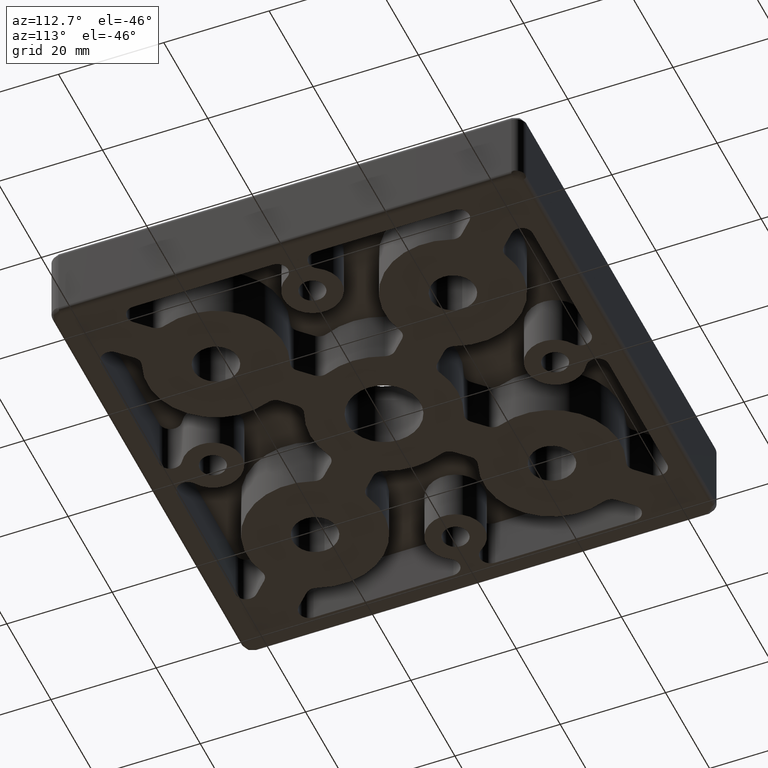
[diagram: clean part render]
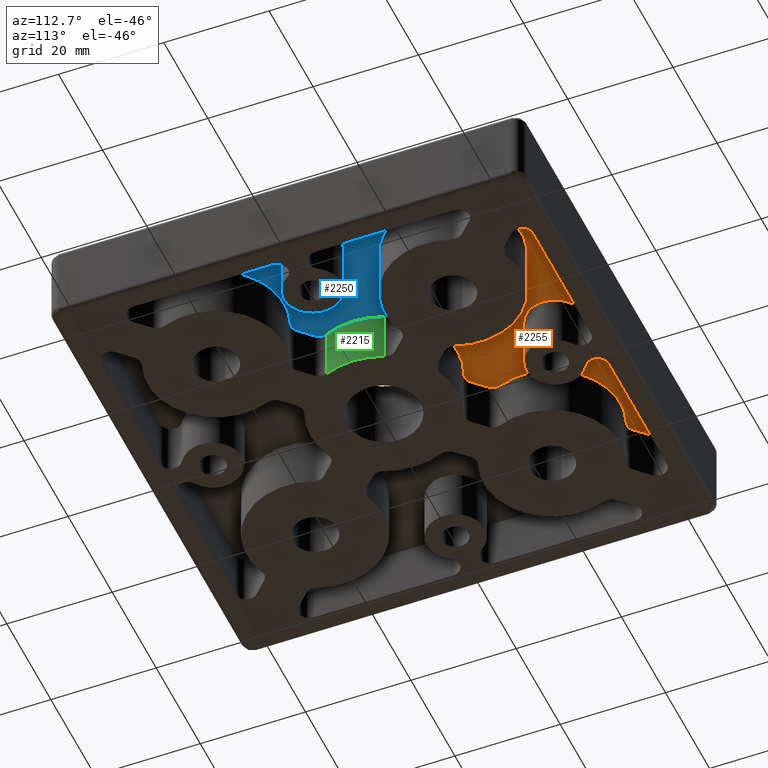
[diagram: same view with three faces highlighted in distinct colors, each labeled with its STEP entity id]
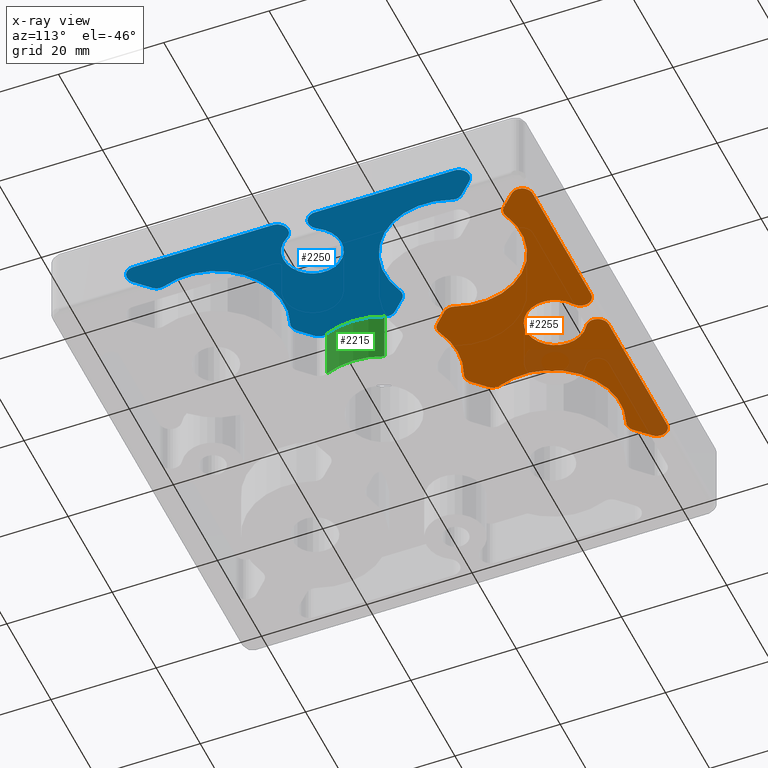
[diagram: x-ray of the same camera — body ghosted, the three highlighted faces saturated]
A machine part, auxiliary view with three faces highlighted in distinct colors.
The next image is the same camera in x-ray (body ghosted, the three faces saturated) — at least one of them is partly hidden behind the body in this view.
Their STEP definitions:

[orange] entity #2255 — the highlighted planar face has unit normal (0, 0, 1).
#95=PLANE('',#2489);
#183=FACE_OUTER_BOUND('',#315,.T.);
#315=EDGE_LOOP('',(#1755,#1756,#1757,#1758,#1759,#1760,#1761,#1762,#1763,
#1764,#1765,#1766,#1767,#1768,#1769,#1770,#1771,#1772,#1773,#1774));
#450=LINE('',#3484,#602);
#460=LINE('',#3522,#612);
#471=LINE('',#3567,#623);
#490=LINE('',#3642,#642);
#500=LINE('',#3678,#652);
#534=LINE('',#3802,#686);
#602=VECTOR('',#2733,26.514718625761);
#612=VECTOR('',#2771,3.58679669428856);
#623=VECTOR('',#2822,3.23968109436408);
#642=VECTOR('',#2901,3.23968109436305);
#652=VECTOR('',#2939,3.58679669428761);
#686=VECTOR('',#3073,26.5147186257614);
#744=CIRCLE('',#2355,2.);
#752=CIRCLE('',#2369,2.);
#754=CIRCLE('',#2373,2.);
#756=CIRCLE('',#2376,13.);
#764=CIRCLE('',#2389,2.);
#774=CIRCLE('',#2407,2.);
#776=CIRCLE('',#2410,14.);
#782=CIRCLE('',#2419,2.);
#786=CIRCLE('',#2427,2.);
#788=CIRCLE('',#2430,13.);
#790=CIRCLE('',#2433,2.);
#817=CIRCLE('',#2481,5.5);
#819=CIRCLE('',#2484,2.07142857142857);
#821=CIRCLE('',#2488,2.07142857142857);
#933=VERTEX_POINT('',#3471);
#934=VERTEX_POINT('',#3472);
#938=VERTEX_POINT('',#3482);
#949=VERTEX_POINT('',#3513);
#950=VERTEX_POINT('',#3514);
#953=VERTEX_POINT('',#3525);
#954=VERTEX_POINT('',#3526);
#963=VERTEX_POINT('',#3558);
#964=VERTEX_POINT('',#3559);
#981=VERTEX_POINT('',#3609);
#982=VERTEX_POINT('',#3610);
#989=VERTEX_POINT('',#3633);
#990=VERTEX_POINT('',#3634);
#997=VERTEX_POINT('',#3657);
#998=VERTEX_POINT('',#3658);
#1001=VERTEX_POINT('',#3669);
#1002=VERTEX_POINT('',#3670);
#1041=VERTEX_POINT('',#3790);
#1042=VERTEX_POINT('',#3792);
#1044=VERTEX_POINT('',#3798);
#1170=EDGE_CURVE('',#933,#934,#744,.T.);
#1176=EDGE_CURVE('',#938,#934,#450,.T.);
#1190=EDGE_CURVE('',#949,#950,#752,.T.);
#1194=EDGE_CURVE('',#933,#950,#460,.T.);
#1196=EDGE_CURVE('',#953,#954,#754,.T.);
#1200=EDGE_CURVE('',#949,#954,#756,.T.);
#1213=EDGE_CURVE('',#963,#964,#764,.T.);
#1217=EDGE_CURVE('',#953,#964,#471,.T.);
#1238=EDGE_CURVE('',#981,#982,#774,.T.);
#1242=EDGE_CURVE('',#963,#982,#776,.T.);
#1250=EDGE_CURVE('',#989,#990,#782,.T.);
#1254=EDGE_CURVE('',#981,#990,#490,.T.);
#1262=EDGE_CURVE('',#997,#998,#786,.T.);
#1266=EDGE_CURVE('',#989,#998,#788,.T.);
#1268=EDGE_CURVE('',#1001,#1002,#790,.T.);
#1272=EDGE_CURVE('',#997,#1002,#500,.T.);
#1329=EDGE_CURVE('',#1041,#1042,#817,.T.);
#1333=EDGE_CURVE('',#1044,#1041,#819,.T.);
#1334=EDGE_CURVE('',#1001,#1044,#534,.T.);
#1337=EDGE_CURVE('',#1042,#938,#821,.T.);
#1755=ORIENTED_EDGE('',*,*,#1170,.T.);
#1756=ORIENTED_EDGE('',*,*,#1176,.F.);
#1757=ORIENTED_EDGE('',*,*,#1337,.F.);
#1758=ORIENTED_EDGE('',*,*,#1329,.F.);
#1759=ORIENTED_EDGE('',*,*,#1333,.F.);
#1760=ORIENTED_EDGE('',*,*,#1334,.F.);
#1761=ORIENTED_EDGE('',*,*,#1268,.T.);
#1762=ORIENTED_EDGE('',*,*,#1272,.F.);
#1763=ORIENTED_EDGE('',*,*,#1262,.T.);
#1764=ORIENTED_EDGE('',*,*,#1266,.F.);
#1765=ORIENTED_EDGE('',*,*,#1250,.T.);
#1766=ORIENTED_EDGE('',*,*,#1254,.F.);
#1767=ORIENTED_EDGE('',*,*,#1238,.T.);
#1768=ORIENTED_EDGE('',*,*,#1242,.F.);
#1769=ORIENTED_EDGE('',*,*,#1213,.T.);
#1770=ORIENTED_EDGE('',*,*,#1217,.F.);
#1771=ORIENTED_EDGE('',*,*,#1196,.T.);
#1772=ORIENTED_EDGE('',*,*,#1200,.F.);
#1773=ORIENTED_EDGE('',*,*,#1190,.T.);
#1774=ORIENTED_EDGE('',*,*,#1194,.F.);
#2255=ADVANCED_FACE('',(#183),#95,.F.);
#2355=AXIS2_PLACEMENT_3D('',#3473,#2723,#2724);
#2369=AXIS2_PLACEMENT_3D('',#3515,#2763,#2764);
#2373=AXIS2_PLACEMENT_3D('',#3527,#2775,#2776);
#2376=AXIS2_PLACEMENT_3D('',#3534,#2783,#2784);
#2389=AXIS2_PLACEMENT_3D('',#3560,#2814,#2815);
#2407=AXIS2_PLACEMENT_3D('',#3611,#2865,#2866);
#2410=AXIS2_PLACEMENT_3D('',#3618,#2873,#2874);
#2419=AXIS2_PLACEMENT_3D('',#3635,#2893,#2894);
#2427=AXIS2_PLACEMENT_3D('',#3659,#2917,#2918);
#2430=AXIS2_PLACEMENT_3D('',#3666,#2925,#2926);
#2433=AXIS2_PLACEMENT_3D('',#3671,#2931,#2932);
#2481=AXIS2_PLACEMENT_3D('',#3793,#3061,#3062);
#2484=AXIS2_PLACEMENT_3D('',#3800,#3069,#3070);
#2488=AXIS2_PLACEMENT_3D('',#3806,#3079,#3080);
#2489=AXIS2_PLACEMENT_3D('',#3807,#3081,#3082);
#2723=DIRECTION('center_axis',(0.,0.,-1.));
#2724=DIRECTION('ref_axis',(-0.92387953251129,0.382683432365081,0.));
#2733=DIRECTION('',(-1.,-5.66744912441184E-16,0.));
#2763=DIRECTION('center_axis',(0.,0.,-1.));
#2764=DIRECTION('ref_axis',(-0.204309643689221,-0.978906312930703,0.));
#2771=DIRECTION('',(0.707106781186548,-0.707106781186547,0.));
#2775=DIRECTION('center_axis',(0.,0.,-1.));
#2776=DIRECTION('ref_axis',(-0.978906312930703,-0.204309643689221,0.));
#2783=DIRECTION('center_axis',(0.,0.,-1.));
#2784=DIRECTION('ref_axis',(0.455230824424841,-0.890373459001041,0.));
#2814=DIRECTION('center_axis',(0.,0.,-1.));
#2815=DIRECTION('ref_axis',(-0.191017262457544,-0.981586677498847,0.));
#2822=DIRECTION('',(0.707106781186548,-0.707106781186548,0.));
#2865=DIRECTION('center_axis',(0.,0.,-1.));
#2866=DIRECTION('ref_axis',(0.191017262457549,-0.981586677498846,0.));
#2873=DIRECTION('center_axis',(0.,0.,-1.));
#2874=DIRECTION('ref_axis',(0.47560041826768,-0.879661436089822,0.));
#2893=DIRECTION('center_axis',(0.,0.,-1.));
#2894=DIRECTION('ref_axis',(0.978906312930719,-0.204309643689144,0.));
#2901=DIRECTION('',(0.707106781186548,0.707106781186547,0.));
#2917=DIRECTION('center_axis',(0.,0.,-1.));
#2918=DIRECTION('ref_axis',(0.204309643689146,-0.978906312930719,0.));
#2925=DIRECTION('center_axis',(0.,0.,-1.));
#2926=DIRECTION('ref_axis',(0.89037345900097,0.45523082442498,0.));
#2931=DIRECTION('center_axis',(0.,0.,-1.));
#2932=DIRECTION('ref_axis',(0.923879532511288,0.382683432365086,0.));
#2939=DIRECTION('',(0.707106781186548,0.707106781186547,0.));
#3061=DIRECTION('center_axis',(0.,0.,-1.));
#3062=DIRECTION('ref_axis',(-0.528301886792507,-0.849056603773551,0.));
#3069=DIRECTION('center_axis',(0.,0.,1.));
#3070=DIRECTION('ref_axis',(-0.528301886792223,-0.849056603773728,0.));
#3073=DIRECTION('',(-1.,2.83372456220589E-16,0.));
#3079=DIRECTION('center_axis',(0.,0.,1.));
#3080=DIRECTION('ref_axis',(-1.96432908253504E-13,1.,0.));
#3081=DIRECTION('center_axis',(0.,0.,1.));
#3082=DIRECTION('ref_axis',(1.,0.,0.));
#3471=CARTESIAN_POINT('',(-31.9289321881345,37.5857864376269,-5.));
#3472=CARTESIAN_POINT('',(-30.5147186257614,41.,-5.));
#3473=CARTESIAN_POINT('Origin',(-30.5147186257614,39.,-5.));
#3482=CARTESIAN_POINT('',(-4.00000000000041,41.,-5.));
#3484=CARTESIAN_POINT('',(-35.3431457505076,41.,-5.));
#3513=CARTESIAN_POINT('',(-27.2480076457602,34.6019181701003,-5.));
#3514=CARTESIAN_POINT('',(-29.3926839228656,35.049538172358,-5.));
#3515=CARTESIAN_POINT('Origin',(-27.9784703604925,36.4637517347311,-5.));
#3522=CARTESIAN_POINT('',(-28.4180007175248,34.0748549670172,-5.));
#3525=CARTESIAN_POINT('',(-9.95046182764202,15.6073160771344,-5.));
#3526=CARTESIAN_POINT('',(-10.3980818298997,17.7519923542398,-5.));
#3527=CARTESIAN_POINT('Origin',(-8.53624826526893,17.0215296395075,-5.));
#3534=CARTESIAN_POINT('Origin',(-22.5,22.5,-5.));
#3558=CARTESIAN_POINT('',(-5.46476682024194,12.8893880226971,-5.));
#3559=CARTESIAN_POINT('',(-7.65966135693533,13.3165156064277,-5.));
#3560=CARTESIAN_POINT('Origin',(-6.24544779456223,14.7307291688008,-5.));
#3567=CARTESIAN_POINT('',(-6.65840585576003,12.3152601052524,-5.));
#3609=CARTESIAN_POINT('',(7.65966135693538,13.3165156064278,-5.));
#3610=CARTESIAN_POINT('',(5.46476682024202,12.8893880226972,-5.));
#3611=CARTESIAN_POINT('Origin',(6.24544779456229,14.7307291688009,-5.));
#3618=CARTESIAN_POINT('Origin',(1.02140518265514E-13,-2.84416934448473E-11,
-5.));
#3633=CARTESIAN_POINT('',(10.3980818298989,17.7519923542394,-5.));
#3634=CARTESIAN_POINT('',(9.95046182764135,15.6073160771337,-5.));
#3635=CARTESIAN_POINT('Origin',(8.53624826526825,17.0215296395068,-5.));
#3642=CARTESIAN_POINT('',(10.9251450329828,16.5819992824752,-5.));
#3657=CARTESIAN_POINT('',(29.3926839228663,35.0495381723587,-5.));
#3658=CARTESIAN_POINT('',(27.2480076457605,34.6019181701011,-5.));
#3659=CARTESIAN_POINT('Origin',(27.9784703604932,36.4637517347318,-5.));
#3666=CARTESIAN_POINT('Origin',(22.4999999999985,22.5000000000015,-5.));
#3669=CARTESIAN_POINT('',(30.5147186257614,41.,-5.));
#3670=CARTESIAN_POINT('',(31.9289321881345,37.5857864376269,-5.));
#3671=CARTESIAN_POINT('Origin',(30.5147186257614,39.,-5.));
#3678=CARTESIAN_POINT('',(35.3431457505076,41.,-5.));
#3790=CARTESIAN_POINT('',(2.90566037735897,37.1698113207544,-5.));
#3792=CARTESIAN_POINT('',(-2.90566037735849,37.1698113207547,-5.));
#3793=CARTESIAN_POINT('Origin',(6.10622663543836E-15,32.4999999999996,-5.));
#3798=CARTESIAN_POINT('',(4.,41.,-5.));
#3800=CARTESIAN_POINT('Origin',(4.,38.9285714285714,-5.));
#3802=CARTESIAN_POINT('',(4.,41.,-5.));
#3806=CARTESIAN_POINT('Origin',(-4.,38.9285714285714,-5.));
#3807=CARTESIAN_POINT('Origin',(1.62922618194111E-13,33.0281692798006,-5.));

[blue] entity #2250 — the highlighted planar face has unit normal (0, 0, 1).
#93=PLANE('',#2478);
#178=FACE_OUTER_BOUND('',#310,.T.);
#310=EDGE_LOOP('',(#1719,#1720,#1721,#1722,#1723,#1724,#1725,#1726,#1727,
#1728,#1729,#1730,#1731,#1732,#1733,#1734,#1735,#1736,#1737,#1738));
#483=LINE('',#3607,#635);
#495=LINE('',#3655,#647);
#505=LINE('',#3691,#657);
#510=LINE('',#3706,#662);
#524=LINE('',#3762,#676);
#526=LINE('',#3766,#678);
#635=VECTOR('',#2862,3.23968109408057);
#647=VECTOR('',#2914,3.58679669428888);
#657=VECTOR('',#2952,26.5147186257615);
#662=VECTOR('',#2965,3.58679669428855);
#676=VECTOR('',#3027,3.23968109407994);
#678=VECTOR('',#3031,26.5147186257614);
#766=CIRCLE('',#2393,2.);
#769=CIRCLE('',#2397,14.);
#772=CIRCLE('',#2403,2.);
#778=CIRCLE('',#2413,2.);
#781=CIRCLE('',#2417,13.);
#784=CIRCLE('',#2423,2.);
#792=CIRCLE('',#2437,2.);
#794=CIRCLE('',#2441,2.);
#796=CIRCLE('',#2445,2.);
#799=CIRCLE('',#2449,13.);
#808=CIRCLE('',#2465,2.);
#811=CIRCLE('',#2471,2.07142857142858);
#813=CIRCLE('',#2474,5.5);
#815=CIRCLE('',#2477,2.07142857142858);
#967=VERTEX_POINT('',#3570);
#968=VERTEX_POINT('',#3571);
#972=VERTEX_POINT('',#3581);
#977=VERTEX_POINT('',#3597);
#980=VERTEX_POINT('',#3605);
#985=VERTEX_POINT('',#3621);
#988=VERTEX_POINT('',#3629);
#993=VERTEX_POINT('',#3645);
#996=VERTEX_POINT('',#3653);
#1005=VERTEX_POINT('',#3681);
#1008=VERTEX_POINT('',#3689);
#1009=VERTEX_POINT('',#3693);
#1010=VERTEX_POINT('',#3694);
#1014=VERTEX_POINT('',#3704);
#1015=VERTEX_POINT('',#3708);
#1018=VERTEX_POINT('',#3716);
#1031=VERTEX_POINT('',#3756);
#1033=VERTEX_POINT('',#3765);
#1036=VERTEX_POINT('',#3773);
#1038=VERTEX_POINT('',#3779);
#1219=EDGE_CURVE('',#967,#968,#766,.T.);
#1225=EDGE_CURVE('',#972,#968,#769,.T.);
#1232=EDGE_CURVE('',#972,#977,#772,.T.);
#1237=EDGE_CURVE('',#980,#977,#483,.T.);
#1244=EDGE_CURVE('',#980,#985,#778,.T.);
#1249=EDGE_CURVE('',#988,#985,#781,.T.);
#1256=EDGE_CURVE('',#988,#993,#784,.T.);
#1261=EDGE_CURVE('',#996,#993,#495,.T.);
#1274=EDGE_CURVE('',#996,#1005,#792,.T.);
#1279=EDGE_CURVE('',#1008,#1005,#505,.T.);
#1280=EDGE_CURVE('',#1009,#1010,#794,.T.);
#1286=EDGE_CURVE('',#1014,#1010,#510,.T.);
#1287=EDGE_CURVE('',#1014,#1015,#796,.T.);
#1292=EDGE_CURVE('',#1018,#1015,#799,.T.);
#1311=EDGE_CURVE('',#1018,#1031,#808,.T.);
#1314=EDGE_CURVE('',#967,#1031,#524,.T.);
#1316=EDGE_CURVE('',#1009,#1033,#526,.T.);
#1321=EDGE_CURVE('',#1036,#1008,#811,.T.);
#1324=EDGE_CURVE('',#1038,#1036,#813,.T.);
#1326=EDGE_CURVE('',#1033,#1038,#815,.T.);
#1719=ORIENTED_EDGE('',*,*,#1219,.T.);
#1720=ORIENTED_EDGE('',*,*,#1225,.F.);
#1721=ORIENTED_EDGE('',*,*,#1232,.T.);
#1722=ORIENTED_EDGE('',*,*,#1237,.F.);
#1723=ORIENTED_EDGE('',*,*,#1244,.T.);
#1724=ORIENTED_EDGE('',*,*,#1249,.F.);
#1725=ORIENTED_EDGE('',*,*,#1256,.T.);
#1726=ORIENTED_EDGE('',*,*,#1261,.F.);
#1727=ORIENTED_EDGE('',*,*,#1274,.T.);
#1728=ORIENTED_EDGE('',*,*,#1279,.F.);
#1729=ORIENTED_EDGE('',*,*,#1321,.F.);
#1730=ORIENTED_EDGE('',*,*,#1324,.F.);
#1731=ORIENTED_EDGE('',*,*,#1326,.F.);
#1732=ORIENTED_EDGE('',*,*,#1316,.F.);
#1733=ORIENTED_EDGE('',*,*,#1280,.T.);
#1734=ORIENTED_EDGE('',*,*,#1286,.F.);
#1735=ORIENTED_EDGE('',*,*,#1287,.T.);
#1736=ORIENTED_EDGE('',*,*,#1292,.F.);
#1737=ORIENTED_EDGE('',*,*,#1311,.T.);
#1738=ORIENTED_EDGE('',*,*,#1314,.F.);
#2250=ADVANCED_FACE('',(#178),#93,.F.);
#2393=AXIS2_PLACEMENT_3D('',#3572,#2826,#2827);
#2397=AXIS2_PLACEMENT_3D('',#3583,#2837,#2838);
#2403=AXIS2_PLACEMENT_3D('',#3598,#2853,#2854);
#2413=AXIS2_PLACEMENT_3D('',#3622,#2879,#2880);
#2417=AXIS2_PLACEMENT_3D('',#3631,#2889,#2890);
#2423=AXIS2_PLACEMENT_3D('',#3646,#2905,#2906);
#2437=AXIS2_PLACEMENT_3D('',#3682,#2943,#2944);
#2441=AXIS2_PLACEMENT_3D('',#3695,#2955,#2956);
#2445=AXIS2_PLACEMENT_3D('',#3709,#2968,#2969);
#2449=AXIS2_PLACEMENT_3D('',#3718,#2978,#2979);
#2465=AXIS2_PLACEMENT_3D('',#3757,#3020,#3021);
#2471=AXIS2_PLACEMENT_3D('',#3775,#3039,#3040);
#2474=AXIS2_PLACEMENT_3D('',#3781,#3046,#3047);
#2477=AXIS2_PLACEMENT_3D('',#3784,#3052,#3053);
#2478=AXIS2_PLACEMENT_3D('',#3785,#3054,#3055);
#2826=DIRECTION('center_axis',(0.,0.,-1.));
#2827=DIRECTION('ref_axis',(-0.981586677500149,-0.191017262450855,0.));
#2837=DIRECTION('center_axis',(0.,0.,-1.));
#2838=DIRECTION('ref_axis',(0.879661436085203,0.475600418276223,0.));
#2853=DIRECTION('center_axis',(0.,0.,-1.));
#2854=DIRECTION('ref_axis',(-0.981586677500149,0.191017262450853,0.));
#2862=DIRECTION('',(-0.707106781186547,-0.707106781186548,0.));
#2879=DIRECTION('center_axis',(0.,0.,-1.));
#2880=DIRECTION('ref_axis',(-0.204309643689258,0.978906312930695,0.));
#2889=DIRECTION('center_axis',(0.,0.,-1.));
#2890=DIRECTION('ref_axis',(0.89037345900108,0.455230824424766,0.));
#2905=DIRECTION('center_axis',(0.,0.,-1.));
#2906=DIRECTION('ref_axis',(-0.978906312930696,0.204309643689257,0.));
#2914=DIRECTION('',(-0.707106781186547,-0.707106781186548,0.));
#2943=DIRECTION('center_axis',(0.,0.,-1.));
#2944=DIRECTION('ref_axis',(0.382683432365093,0.923879532511285,0.));
#2952=DIRECTION('',(2.83372456220589E-16,1.,0.));
#2955=DIRECTION('center_axis',(0.,0.,-1.));
#2956=DIRECTION('ref_axis',(0.382683432365086,-0.923879532511288,0.));
#2965=DIRECTION('',(0.707106781186548,-0.707106781186547,0.));
#2968=DIRECTION('center_axis',(0.,0.,-1.));
#2969=DIRECTION('ref_axis',(-0.978906312930703,-0.204309643689223,0.));
#2978=DIRECTION('center_axis',(0.,0.,-1.));
#2979=DIRECTION('ref_axis',(-0.455230824424841,0.890373459001041,0.));
#3020=DIRECTION('center_axis',(0.,0.,-1.));
#3021=DIRECTION('ref_axis',(-0.204309643689219,-0.978906312930704,0.));
#3027=DIRECTION('',(0.707106781186548,-0.707106781186547,0.));
#3031=DIRECTION('',(0.,1.,0.));
#3039=DIRECTION('center_axis',(0.,0.,1.));
#3040=DIRECTION('ref_axis',(-1.,0.,0.));
#3046=DIRECTION('center_axis',(0.,0.,-1.));
#3047=DIRECTION('ref_axis',(0.849112347590097,-0.52821228797713,0.));
#3052=DIRECTION('center_axis',(0.,0.,1.));
#3053=DIRECTION('ref_axis',(0.84890854845615,-0.528539758540522,0.));
#3054=DIRECTION('center_axis',(0.,0.,1.));
#3055=DIRECTION('ref_axis',(1.,0.,0.));
#3570=CARTESIAN_POINT('',(13.3165156066286,-7.65966135713624,-5.));
#3571=CARTESIAN_POINT('',(12.8893880229087,-5.46476682041775,-5.));
#3572=CARTESIAN_POINT('Origin',(14.7307291690017,-6.24544779476314,-5.));
#3581=CARTESIAN_POINT('',(12.8893880229087,5.46476682041776,-5.));
#3583=CARTESIAN_POINT('Origin',(2.57613930187972E-10,-1.11022302462516E-15,
-5.));
#3597=CARTESIAN_POINT('',(13.3165156066286,7.65966135713625,-5.));
#3598=CARTESIAN_POINT('Origin',(14.7307291690017,6.24544779476316,-5.));
#3605=CARTESIAN_POINT('',(15.6073160771348,9.95046182764248,-5.));
#3607=CARTESIAN_POINT('',(16.5819992824752,10.9251450329828,-5.));
#3621=CARTESIAN_POINT('',(17.7519923542401,10.3980818299003,-5.));
#3622=CARTESIAN_POINT('Origin',(17.0215296395079,8.53624826526939,-5.));
#3629=CARTESIAN_POINT('',(34.6019181701,27.2480076457601,-5.));
#3631=CARTESIAN_POINT('Origin',(22.4999999999993,22.5000000000009,-5.));
#3645=CARTESIAN_POINT('',(35.0495381723578,29.3926839228654,-5.));
#3646=CARTESIAN_POINT('Origin',(36.4637517347309,27.9784703604923,-5.));
#3653=CARTESIAN_POINT('',(37.5857864376269,31.9289321881346,-5.));
#3655=CARTESIAN_POINT('',(41.,35.3431457505077,-5.));
#3681=CARTESIAN_POINT('',(41.,30.5147186257615,-5.));
#3682=CARTESIAN_POINT('Origin',(39.,30.5147186257615,-5.));
#3689=CARTESIAN_POINT('',(41.,4.00000000000001,-5.));
#3691=CARTESIAN_POINT('',(41.,4.00000000000001,-5.));
#3693=CARTESIAN_POINT('',(41.,-30.5147186257614,-5.));
#3694=CARTESIAN_POINT('',(37.5857864376269,-31.9289321881345,-5.));
#3695=CARTESIAN_POINT('Origin',(39.,-30.5147186257614,-5.));
#3704=CARTESIAN_POINT('',(35.049538172358,-29.3926839228656,-5.));
#3706=CARTESIAN_POINT('',(34.0748549670172,-28.4180007175248,-5.));
#3708=CARTESIAN_POINT('',(34.6019181701003,-27.2480076457602,-5.));
#3709=CARTESIAN_POINT('Origin',(36.4637517347311,-27.9784703604925,-5.));
#3716=CARTESIAN_POINT('',(17.7519923542398,-10.3980818298997,-5.));
#3718=CARTESIAN_POINT('Origin',(22.5,-22.5,-5.));
#3756=CARTESIAN_POINT('',(15.6073160771344,-9.95046182764202,-5.));
#3757=CARTESIAN_POINT('Origin',(17.0215296395075,-8.53624826526893,-5.));
#3762=CARTESIAN_POINT('',(12.3152601052513,-6.65840585575895,-5.));
#3765=CARTESIAN_POINT('',(41.,-4.,-5.));
#3766=CARTESIAN_POINT('',(41.,-35.3431457505076,-5.));
#3773=CARTESIAN_POINT('',(37.1698113207547,2.90566037735849,-5.));
#3775=CARTESIAN_POINT('Origin',(38.9285714285714,4.00000000000001,-5.));
#3779=CARTESIAN_POINT('',(37.1701179377472,-2.9051676000492,-5.));
#3781=CARTESIAN_POINT('Origin',(32.5,2.77555756156289E-15,-5.));
#3784=CARTESIAN_POINT('Origin',(38.9285714285714,-4.,-5.));
#3785=CARTESIAN_POINT('Origin',(33.028169279794,-5.77793428094883E-12,-5.));

[green] entity #2215 — the highlighted cylindrical surface (partial cylindrical patch) has radius 14 mm, axis along (0, 0, 1).
#143=FACE_OUTER_BOUND('',#275,.T.);
#275=EDGE_LOOP('',(#1579,#1580,#1581,#1582));
#474=LINE('',#3577,#626);
#475=LINE('',#3582,#627);
#626=VECTOR('',#2831,10.);
#627=VECTOR('',#2836,10.);
#768=CIRCLE('',#2396,14.);
#769=CIRCLE('',#2397,14.);
#968=VERTEX_POINT('',#3571);
#970=VERTEX_POINT('',#3575);
#971=VERTEX_POINT('',#3579);
#972=VERTEX_POINT('',#3581);
#1222=EDGE_CURVE('',#970,#968,#474,.T.);
#1223=EDGE_CURVE('',#971,#970,#768,.T.);
#1224=EDGE_CURVE('',#972,#971,#475,.T.);
#1225=EDGE_CURVE('',#972,#968,#769,.T.);
#1579=ORIENTED_EDGE('',*,*,#1222,.F.);
#1580=ORIENTED_EDGE('',*,*,#1223,.F.);
#1581=ORIENTED_EDGE('',*,*,#1224,.F.);
#1582=ORIENTED_EDGE('',*,*,#1225,.T.);
#2124=CYLINDRICAL_SURFACE('',#2395,14.);
#2215=ADVANCED_FACE('',(#143),#2124,.T.);
#2395=AXIS2_PLACEMENT_3D('',#3578,#2832,#2833);
#2396=AXIS2_PLACEMENT_3D('',#3580,#2834,#2835);
#2397=AXIS2_PLACEMENT_3D('',#3583,#2837,#2838);
#2831=DIRECTION('',(0.,0.,1.));
#2832=DIRECTION('center_axis',(0.,0.,1.));
#2833=DIRECTION('ref_axis',(0.879661436085203,0.475600418276223,0.));
#2834=DIRECTION('center_axis',(0.,0.,-1.));
#2835=DIRECTION('ref_axis',(0.879661436085203,0.475600418276223,0.));
#2836=DIRECTION('',(0.,0.,-1.));
#2837=DIRECTION('center_axis',(0.,0.,-1.));
#2838=DIRECTION('ref_axis',(0.879661436085203,0.475600418276223,0.));
#3571=CARTESIAN_POINT('',(12.8893880229087,-5.46476682041775,-5.));
#3575=CARTESIAN_POINT('',(12.8893880229087,-5.46476682041775,-15.));
#3577=CARTESIAN_POINT('',(12.8893880229087,-5.46476682041775,-15.));
#3578=CARTESIAN_POINT('Origin',(2.57613930187972E-10,-1.11022302462516E-15,
-15.));
#3579=CARTESIAN_POINT('',(12.8893880229087,5.46476682041776,-15.));
#3580=CARTESIAN_POINT('Origin',(2.57613930187972E-10,-1.11022302462516E-15,
-15.));
#3581=CARTESIAN_POINT('',(12.8893880229087,5.46476682041776,-5.));
#3582=CARTESIAN_POINT('',(12.8893880229087,5.46476682041776,-15.));
#3583=CARTESIAN_POINT('Origin',(2.57613930187972E-10,-1.11022302462516E-15,
-5.));